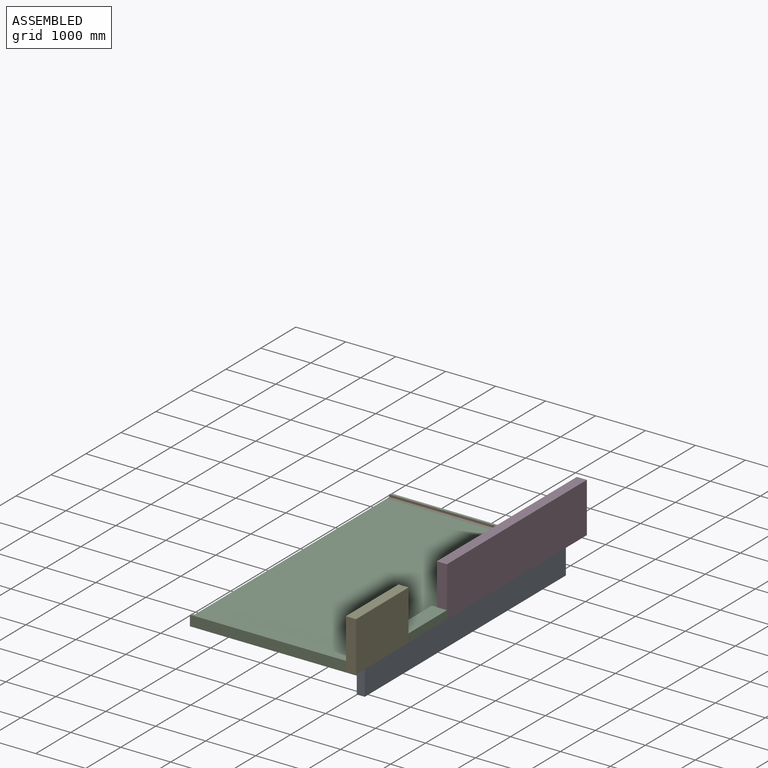
[diagram: assembled view]
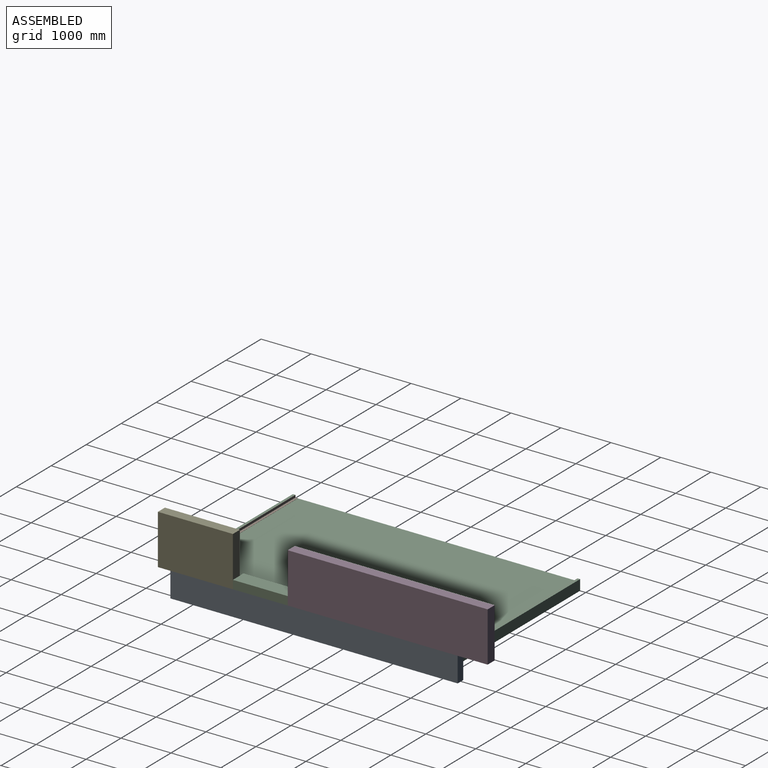
[diagram: assembled view, second angle]
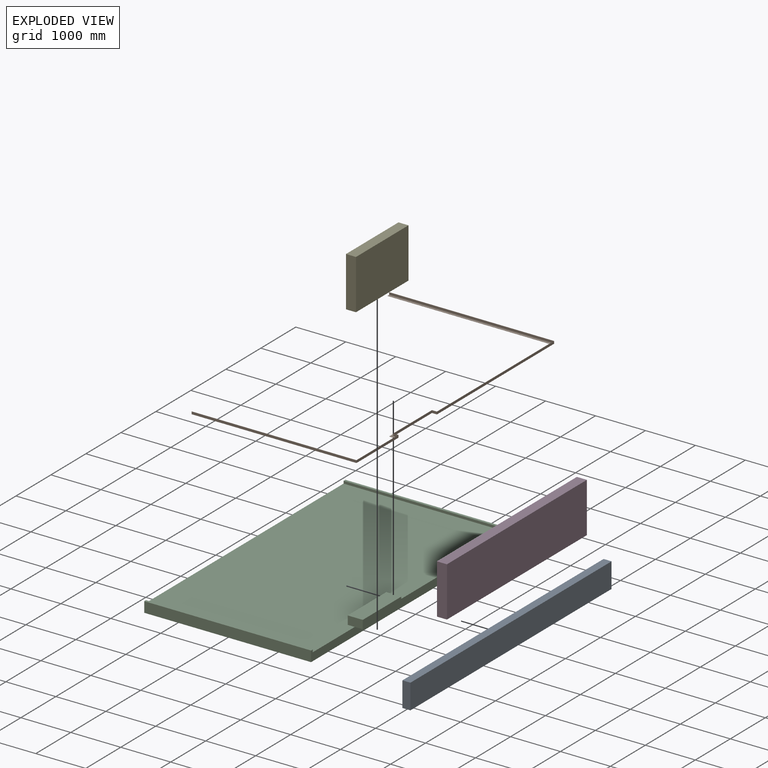
[diagram: exploded view]
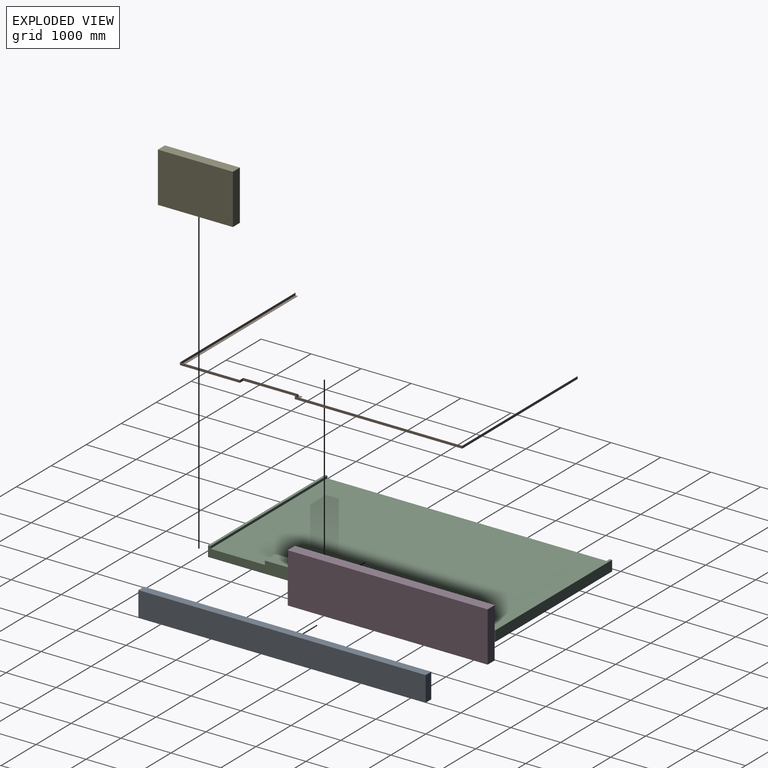
[diagram: exploded view, second angle]
ASSEMBLY  parts=5 mates=6
PART A: 6 faces, bbox 160x5750x500 mm
  f0: plane 5750x160mm, normal (0,0,1), area 920000mm2, adj f1,f3,f4,f5
  f1: plane 5750x500mm, normal (-1,0,0), area 2875000mm2, adj f0,f2,f4,f5
  f2: plane 5750x160mm, normal (0,0,-1), area 920000mm2, adj f1,f3,f4,f5
  f3: plane 5750x500mm, normal (1,0,0), area 2875000mm2, adj f0,f2,f4,f5
  f4: plane 500x160mm, normal (0,-1,0), area 80000mm2, adj f0,f1,f2,f3
  f5: plane 500x160mm, normal (0,1,0), area 80000mm2, adj f0,f1,f2,f3
PART B: 26 faces, bbox 3300x5650x50 mm
  f0: plane 50x50mm, normal (-1,0,0), area 291mm2, adj f2,f3,f4,f21,f23,f24
  f1: plane 50x50mm, normal (-1,0,0), area 291mm2, adj f20,f21,f22,f23,f24,f25
  f2: plane 3297x47mm, normal (0,-1,0), area 154959mm2, adj f0,f6,f21,f23
  f3: plane 3300x50mm, normal (0,1,0), area 165000mm2, adj f0,f5,f23,f24
  f4: plane 3250x3mm, normal (0,-1,0), area 9750mm2, adj f0,f7,f21,f24
  f5: plane 3350x50mm, normal (1,0,0), area 167500mm2, adj f3,f8,f23,f24
  f6: plane 3344x47mm, normal (-1,0,0), area 157168mm2, adj f2,f9,f21,f23
  f7: plane 3250x3mm, normal (-1,0,0), area 9750mm2, adj f4,f10,f21,f24
  f8: plane 100x50mm, normal (0,-1,0), area 5000mm2, adj f5,f12,f23,f24
  f9: plane 100x47mm, normal (0,1,0), area 4700mm2, adj f6,f13,f21,f23
  f10: plane 100x3mm, normal (0,1,0), area 300mm2, adj f7,f11,f21,f24
  f11: plane 1200x3mm, normal (-1,0,0), area 3600mm2, adj f10,f14,f21,f24
  f12: plane 1100x50mm, normal (1,0,0), area 55000mm2, adj f8,f15,f23,f24
  f13: plane 1106x47mm, normal (-1,0,0), area 51982mm2, adj f9,f16,f21,f23
  f14: plane 100x3mm, normal (0,-1,0), area 300mm2, adj f11,f19,f21,f24
  f15: plane 100x50mm, normal (0,1,0), area 5000mm2, adj f12,f17,f23,f24
  f16: plane 100x47mm, normal (0,-1,0), area 4700mm2, adj f13,f18,f21,f23
  f17: plane 1200x50mm, normal (1,0,0), area 60000mm2, adj f15,f20,f23,f24
  f18: plane 1194x47mm, normal (-1,0,0), area 56118mm2, adj f16,f21,f22,f23
  f19: plane 1100x3mm, normal (-1,0,0), area 3300mm2, adj f14,f21,f24,f25
  f20: plane 3300x50mm, normal (0,-1,0), area 165000mm2, adj f1,f17,f23,f24
  f21: plane 5644x3297mm, normal (0,0,1), area 580168mm2, adj f0,f1,f2,f4,f6,f7,f9,f10
  f22: plane 3297x47mm, normal (0,1,0), area 154959mm2, adj f1,f18,f21,f23
  f23: plane 5650x3300mm, normal (0,0,1), area 37332mm2, adj f0,f1,f2,f3,f5,f6,f8,f9
  f24: plane 5650x3300mm, normal (0,0,-1), area 617500mm2, adj f0,f1,f3,f4,f5,f7,f8,f10
  f25: plane 3250x3mm, normal (0,1,0), area 9750mm2, adj f1,f19,f21,f24
PART C: 16 faces, bbox 3500x5750x330 mm
  f0: plane 5650x3340mm, normal (0,0,1), area 18717000mm2, adj f3,f6,f7,f8,f11,f12,f14
  f1: plane 1100x170mm, normal (1,0,0), area 187000mm2, adj f6,f8,f9,f10
  f2: plane 3340x210mm, normal (0,1,0), area 701400mm2, adj f3,f5,f11,f15
  f3: plane 5750x210mm, normal (-1,0,0), area 925000mm2, adj f0,f2,f4,f5,f12,f13,f14,f15
  f4: plane 3340x210mm, normal (0,-1,0), area 701400mm2, adj f3,f5,f11,f13
  f5: plane 5750x3340mm, normal (0,0,-1), area 19205000mm2, adj f2,f3,f4,f11
  f6: plane 300x170mm, normal (0,1,0), area 51000mm2, adj f0,f1,f7,f9,f10
  f7: plane 1100x170mm, normal (-1,0,0), area 187000mm2, adj f0,f6,f8,f9
  f8: plane 300x170mm, normal (0,-1,0), area 51000mm2, adj f0,f1,f7,f9,f10
  f9: plane 1100x300mm, normal (0,0,1), area 330000mm2, adj f1,f6,f7,f8
  f10: plane 1100x160mm, normal (0,0,-1), area 176000mm2, adj f1,f6,f8,f11
  f11: plane 5750x210mm, normal (1,0,0), area 925000mm2, adj f0,f2,f4,f5,f10,f12,f13,f14
  f12: plane 3340x50mm, normal (0,1,0), area 167000mm2, adj f0,f3,f11,f13
  f13: plane 3340x50mm, normal (0,0,1), area 167000mm2, adj f3,f4,f11,f12
  f14: plane 3340x50mm, normal (0,-1,0), area 167000mm2, adj f0,f3,f11,f15
  f15: plane 3340x50mm, normal (0,0,1), area 167000mm2, adj f2,f3,f11,f14
PART D: 6 faces, bbox 200x4000x1000 mm
  f0: plane 4000x200mm, normal (0,0,1), area 800000mm2, adj f1,f3,f4,f5
  f1: plane 4000x1000mm, normal (-1,0,0), area 4000000mm2, adj f0,f2,f4,f5
  f2: plane 4000x200mm, normal (0,0,-1), area 800000mm2, adj f1,f3,f4,f5
  f3: plane 4000x1000mm, normal (1,0,0), area 4000000mm2, adj f0,f2,f4,f5
  f4: plane 1000x200mm, normal (0,-1,0), area 200000mm2, adj f0,f1,f2,f3
  f5: plane 1000x200mm, normal (0,1,0), area 200000mm2, adj f0,f1,f2,f3
PART E: 6 faces, bbox 200x1500x1000 mm
  f0: plane 1500x200mm, normal (0,0,1), area 300000mm2, adj f1,f3,f4,f5
  f1: plane 1500x1000mm, normal (-1,0,0), area 1500000mm2, adj f0,f2,f4,f5
  f2: plane 1500x200mm, normal (0,0,-1), area 300000mm2, adj f1,f3,f4,f5
  f3: plane 1500x1000mm, normal (1,0,0), area 1500000mm2, adj f0,f2,f4,f5
  f4: plane 1000x200mm, normal (0,-1,0), area 200000mm2, adj f0,f1,f2,f3
  f5: plane 1000x200mm, normal (0,1,0), area 200000mm2, adj f0,f1,f2,f3
PLACE A t=(2136.49,3445.55,-67.9)mm
PLACE B t=(626.49,611.02,-67.9)mm
PLACE C t=(-1203.51,-2304.45,-227.9)mm fixed
PLACE D t=(2296.49,4045.55,-67.9)mm
PLACE E rot(axis=(0,0,-1),180deg) t=(2096.49,-2554.45,-67.9)mm
MATE fastened C.f10 <-> D.f2  axis (0,0,-1) through (2296.49,45.55,-67.9)mm
MATE fastened B.f24 <-> E.f2  axis (0,0,1) through (2096.49,-1054.45,-67.9)mm
MATE planar A.f1 <-> C.f11  axis (-1,0,0) through (2136.49,570.55,-67.9)mm
MATE planar C.f4 <-> A.f4  axis (0,-1,0) through (466.49,-2304.45,-122.9)mm
MATE fastened C.f0 <-> B.f24  axis (0,0,1) through (1996.49,45.55,-67.9)mm
MATE planar C.f0 <-> A.f0  axis (0,0,1) through (453.32,579.39,-67.9)mm
